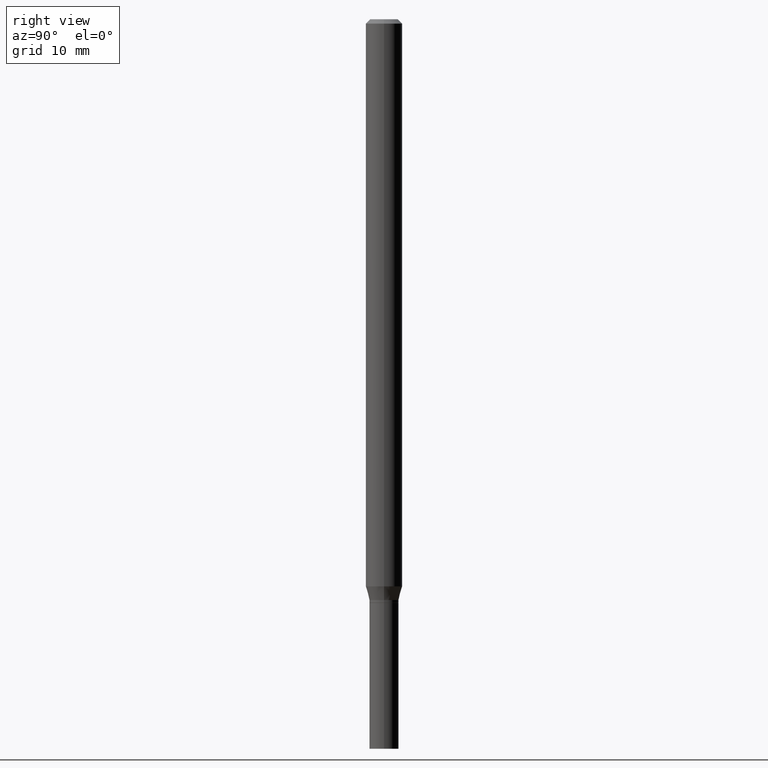
[diagram: clean part render]
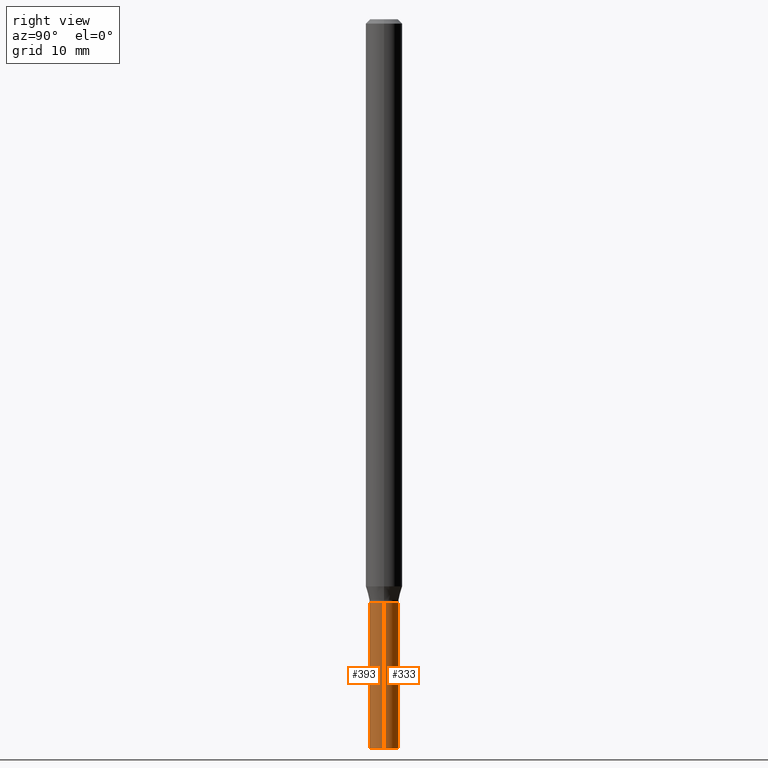
[diagram: same view with one multi-face feature highlighted, each face labeled with its STEP entity id]
A machine part, right view. The highlighted faces form ONE feature: a constant-radius fillet chain: 2 tangent blend faces with common blend radius 1.27 mm. The faces share edges in the B-rep.
Their STEP definitions:
[1] entity #333 (Cylinder):
#9 = CIRCLE ( 'NONE', #73, 0.05000000000000000278 ) ;
#55 = DIRECTION ( 'NONE',  ( -2.445468806185136597E-29, 3.491481338843145583E-15, 1.000000000000000000 ) ) ;
#60 = ORIENTED_EDGE ( 'NONE', *, *, #177, .T. ) ;
#73 = AXIS2_PLACEMENT_3D ( 'NONE', #161, #55, #309 ) ;
#93 = VECTOR ( 'NONE', #367, 39.37007874015748143 ) ;
#106 = CARTESIAN_POINT ( 'NONE',  ( -0.05000000000000000278, 3.552713678800501127E-16, -2.459467545127453311E-30 ) ) ;
#110 = DIRECTION ( 'NONE',  ( 1.000000000000000000, -6.982962677686274599E-15, 0.000000000000000000 ) ) ;
#116 = ORIENTED_EDGE ( 'NONE', *, *, #212, .F. ) ;
#120 = AXIS2_PLACEMENT_3D ( 'NONE', #229, #457, #121 ) ;
#121 = DIRECTION ( 'NONE',  ( 1.000000000000000000, -6.982962677686267499E-15, 4.876176775795936353E-29 ) ) ;
#125 = VERTEX_POINT ( 'NONE', #356 ) ;
#146 = LINE ( 'NONE', #251, #93 ) ;
#161 = CARTESIAN_POINT ( 'NONE',  ( 4.890937612370273754E-29, -6.982962677686291954E-15, -2.000000000000000444 ) ) ;
#168 = FACE_OUTER_BOUND ( 'NONE', #438, .T. ) ;
#172 = VERTEX_POINT ( 'NONE', #298 ) ;
#175 = VECTOR ( 'NONE', #392, 39.37007874015748143 ) ;
#177 = EDGE_CURVE ( 'NONE', #401, #125, #230, .T. ) ;
#212 = EDGE_CURVE ( 'NONE', #401, #345, #146, .T. ) ;
#229 = CARTESIAN_POINT ( 'NONE',  ( 0.000000000000000000, 0.000000000000000000, 0.000000000000000000 ) ) ;
#230 = CIRCLE ( 'NONE', #357, 0.05000000000000000278 ) ;
#251 = CARTESIAN_POINT ( 'NONE',  ( 0.05000000000000000278, -3.491481338843133848E-16, 2.438088387897968247E-30 ) ) ;
#277 = EDGE_CURVE ( 'NONE', #125, #172, #429, .T. ) ;
#298 = CARTESIAN_POINT ( 'NONE',  ( -0.05000000000000000278, -7.500561644517028040E-15, -2.000000000000000444 ) ) ;
#309 = DIRECTION ( 'NONE',  ( 1.000000000000000000, -6.982962677686274599E-15, 0.000000000000000000 ) ) ;
#312 = ORIENTED_EDGE ( 'NONE', *, *, #371, .F. ) ;
#313 = CARTESIAN_POINT ( 'NONE',  ( 0.05000000000000000278, -9.077851480992178278E-15, -2.500000000000000000 ) ) ;
#314 = CYLINDRICAL_SURFACE ( 'NONE', #120, 0.05000000000000000278 ) ;
#333 = ADVANCED_FACE ( 'NONE', ( #168 ), #314, .T. ) ;
#342 = DIRECTION ( 'NONE',  ( -2.445468806185136597E-29, 3.491481338843145583E-15, 1.000000000000000000 ) ) ;
#345 = VERTEX_POINT ( 'NONE', #453 ) ;
#356 = CARTESIAN_POINT ( 'NONE',  ( -0.05000000000000000278, -7.500561644517028040E-15, -2.500000000000000000 ) ) ;
#357 = AXIS2_PLACEMENT_3D ( 'NONE', #373, #342, #110 ) ;
#367 = DIRECTION ( 'NONE',  ( -2.445468806185136877E-29, 3.491481338843145188E-15, 1.000000000000000000 ) ) ;
#371 = EDGE_CURVE ( 'NONE', #345, #172, #9, .T. ) ;
#373 = CARTESIAN_POINT ( 'NONE',  ( 6.113672015462842613E-29, -8.728703347107864943E-15, -2.500000000000000000 ) ) ;
#392 = DIRECTION ( 'NONE',  ( -2.445468806185136877E-29, 3.491481338843145188E-15, 1.000000000000000000 ) ) ;
#401 = VERTEX_POINT ( 'NONE', #313 ) ;
#406 = ORIENTED_EDGE ( 'NONE', *, *, #277, .T. ) ;
#429 = LINE ( 'NONE', #106, #175 ) ;
#438 = EDGE_LOOP ( 'NONE', ( #60, #406, #312, #116 ) ) ;
#453 = CARTESIAN_POINT ( 'NONE',  ( 0.05000000000000000278, -7.332110811570605290E-15, -2.000000000000000444 ) ) ;
#457 = DIRECTION ( 'NONE',  ( -2.445468806185136597E-29, 3.491481338843145583E-15, 1.000000000000000000 ) ) ;
[2] entity #393 (Cylinder):
#7 = EDGE_CURVE ( 'NONE', #125, #401, #287, .T. ) ;
#22 = DIRECTION ( 'NONE',  ( 1.000000000000000000, -6.982962677686267499E-15, 4.876176775795936353E-29 ) ) ;
#36 = CIRCLE ( 'NONE', #113, 0.05000000000000000278 ) ;
#40 = CARTESIAN_POINT ( 'NONE',  ( 6.113672015462842613E-29, -8.728703347107864943E-15, -2.500000000000000000 ) ) ;
#63 = AXIS2_PLACEMENT_3D ( 'NONE', #346, #350, #22 ) ;
#93 = VECTOR ( 'NONE', #367, 39.37007874015748143 ) ;
#106 = CARTESIAN_POINT ( 'NONE',  ( -0.05000000000000000278, 3.552713678800501127E-16, -2.459467545127453311E-30 ) ) ;
#113 = AXIS2_PLACEMENT_3D ( 'NONE', #448, #123, #266 ) ;
#115 = EDGE_LOOP ( 'NONE', ( #255, #402, #421, #218 ) ) ;
#123 = DIRECTION ( 'NONE',  ( -2.445468806185136597E-29, 3.491481338843145583E-15, 1.000000000000000000 ) ) ;
#125 = VERTEX_POINT ( 'NONE', #356 ) ;
#146 = LINE ( 'NONE', #251, #93 ) ;
#172 = VERTEX_POINT ( 'NONE', #298 ) ;
#175 = VECTOR ( 'NONE', #392, 39.37007874015748143 ) ;
#193 = FACE_OUTER_BOUND ( 'NONE', #115, .T. ) ;
#212 = EDGE_CURVE ( 'NONE', #401, #345, #146, .T. ) ;
#218 = ORIENTED_EDGE ( 'NONE', *, *, #388, .F. ) ;
#233 = CYLINDRICAL_SURFACE ( 'NONE', #63, 0.05000000000000000278 ) ;
#251 = CARTESIAN_POINT ( 'NONE',  ( 0.05000000000000000278, -3.491481338843133848E-16, 2.438088387897968247E-30 ) ) ;
#255 = ORIENTED_EDGE ( 'NONE', *, *, #277, .F. ) ;
#266 = DIRECTION ( 'NONE',  ( 1.000000000000000000, -6.982962677686274599E-15, 0.000000000000000000 ) ) ;
#267 = DIRECTION ( 'NONE',  ( -2.445468806185136597E-29, 3.491481338843145583E-15, 1.000000000000000000 ) ) ;
#277 = EDGE_CURVE ( 'NONE', #125, #172, #429, .T. ) ;
#287 = CIRCLE ( 'NONE', #305, 0.05000000000000000278 ) ;
#298 = CARTESIAN_POINT ( 'NONE',  ( -0.05000000000000000278, -7.500561644517028040E-15, -2.000000000000000444 ) ) ;
#305 = AXIS2_PLACEMENT_3D ( 'NONE', #40, #267, #412 ) ;
#313 = CARTESIAN_POINT ( 'NONE',  ( 0.05000000000000000278, -9.077851480992178278E-15, -2.500000000000000000 ) ) ;
#345 = VERTEX_POINT ( 'NONE', #453 ) ;
#346 = CARTESIAN_POINT ( 'NONE',  ( 0.000000000000000000, 0.000000000000000000, 0.000000000000000000 ) ) ;
#350 = DIRECTION ( 'NONE',  ( -2.445468806185136597E-29, 3.491481338843145583E-15, 1.000000000000000000 ) ) ;
#356 = CARTESIAN_POINT ( 'NONE',  ( -0.05000000000000000278, -7.500561644517028040E-15, -2.500000000000000000 ) ) ;
#367 = DIRECTION ( 'NONE',  ( -2.445468806185136877E-29, 3.491481338843145188E-15, 1.000000000000000000 ) ) ;
#388 = EDGE_CURVE ( 'NONE', #172, #345, #36, .T. ) ;
#392 = DIRECTION ( 'NONE',  ( -2.445468806185136877E-29, 3.491481338843145188E-15, 1.000000000000000000 ) ) ;
#393 = ADVANCED_FACE ( 'NONE', ( #193 ), #233, .T. ) ;
#401 = VERTEX_POINT ( 'NONE', #313 ) ;
#402 = ORIENTED_EDGE ( 'NONE', *, *, #7, .T. ) ;
#412 = DIRECTION ( 'NONE',  ( 1.000000000000000000, -6.982962677686274599E-15, 0.000000000000000000 ) ) ;
#421 = ORIENTED_EDGE ( 'NONE', *, *, #212, .T. ) ;
#429 = LINE ( 'NONE', #106, #175 ) ;
#448 = CARTESIAN_POINT ( 'NONE',  ( 4.890937612370273754E-29, -6.982962677686291954E-15, -2.000000000000000444 ) ) ;
#453 = CARTESIAN_POINT ( 'NONE',  ( 0.05000000000000000278, -7.332110811570605290E-15, -2.000000000000000444 ) ) ;